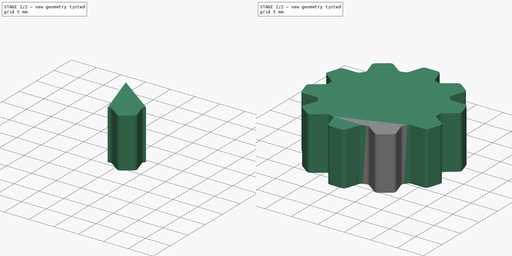
[diagram: build sequence overview — one tinted view per stage of 2, left to right]
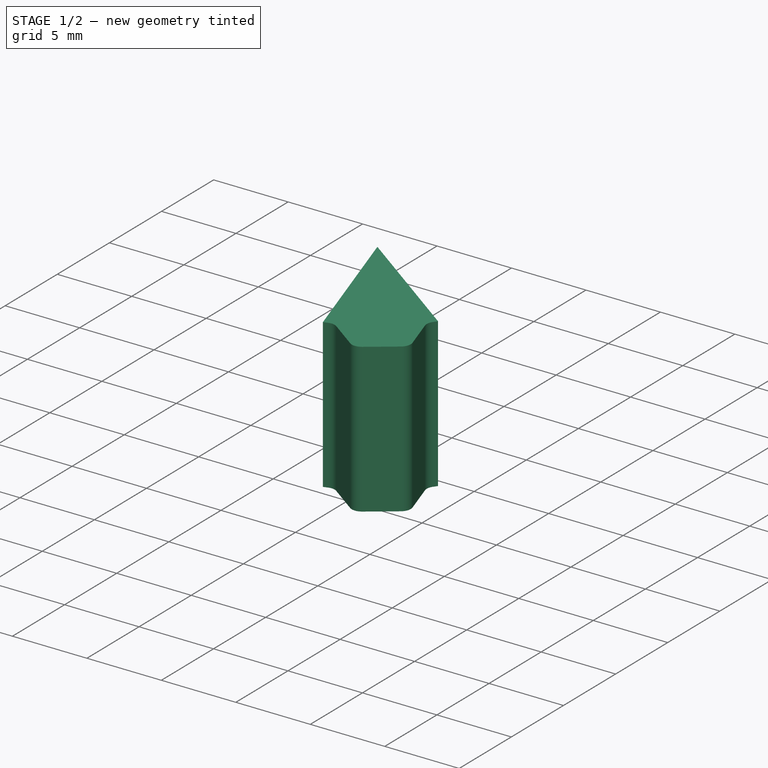
[diagram: stage 1 of 2 — iso view after this stage's code; geometry added in this stage tinted green]
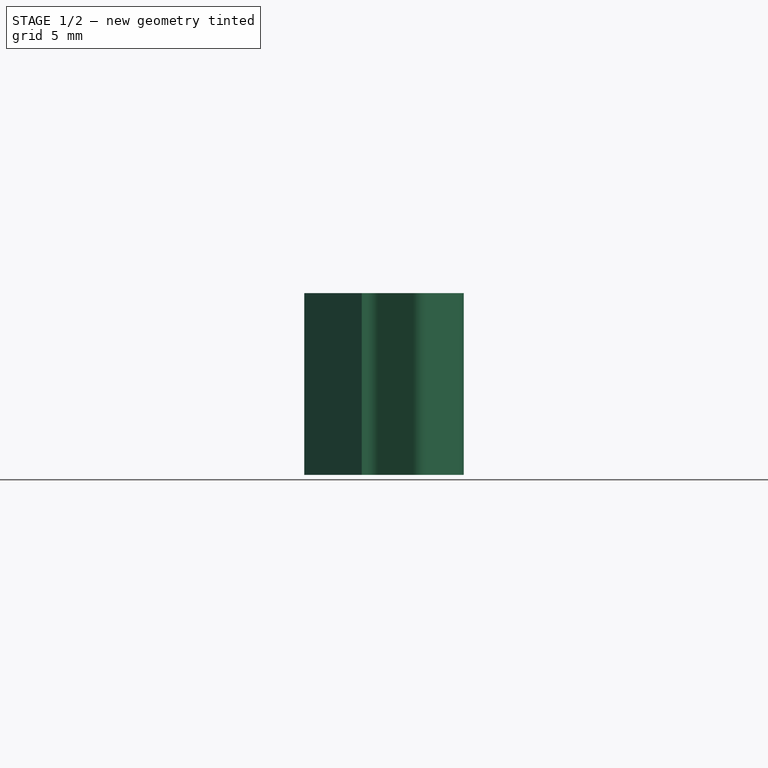
[diagram: stage 1 of 2 — front view after this stage's code; geometry added in this stage tinted green]
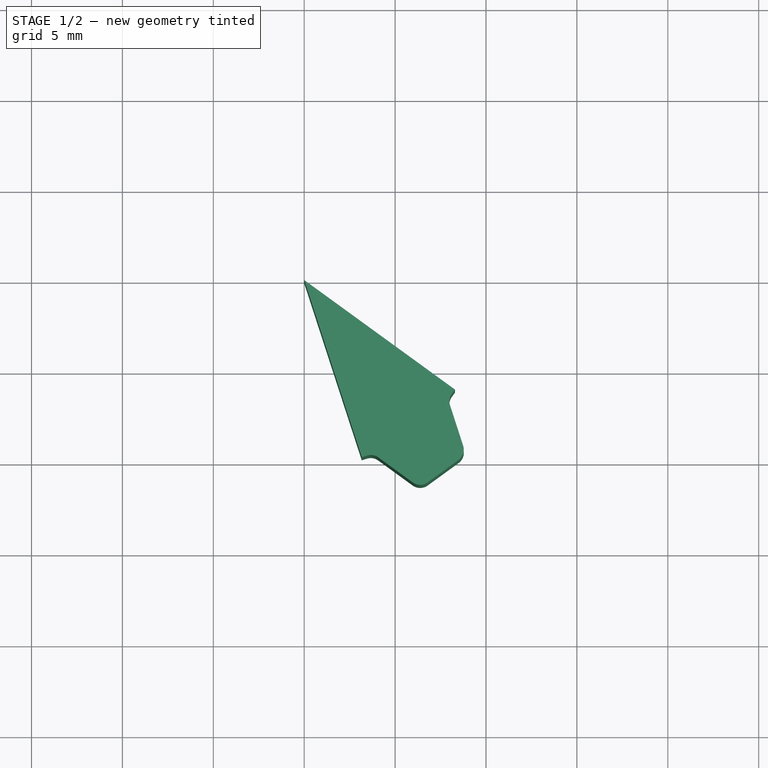
[diagram: stage 1 of 2 — top view after this stage's code; geometry added in this stage tinted green]
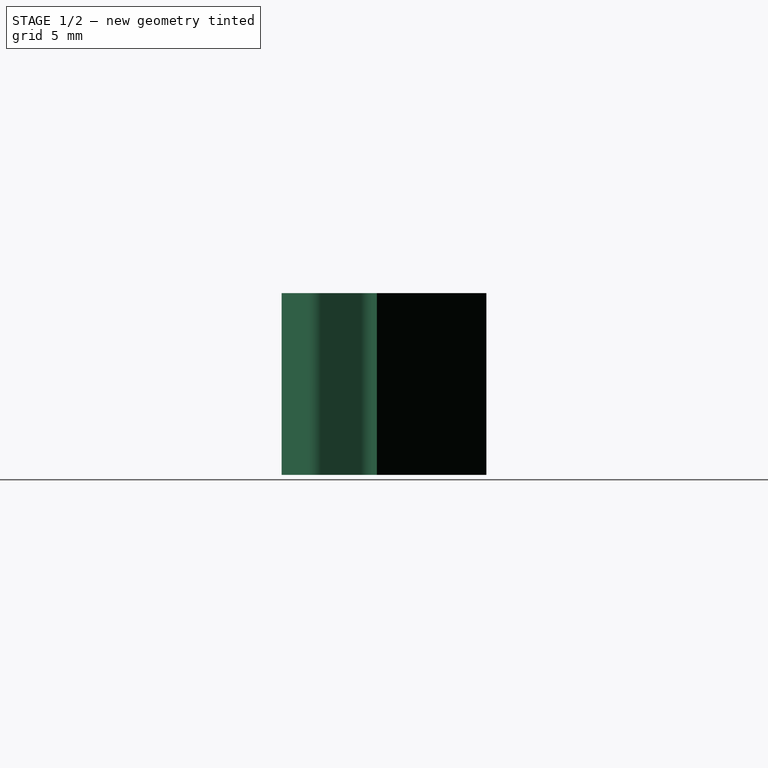
[diagram: stage 1 of 2 — right view after this stage's code; geometry added in this stage tinted green]
FCSTD DOCUMENT  (FreeCAD 0.22R37543 (Git))
Label: FreeCAD_Gear
License: All rights reserved
LicenseURL: https://en.wikipedia.org/wiki/All_rights_reserved
objects: Sketcher::SketchObject×1, PartDesign::Pad×1, PartDesign::PolarPattern×1, PartDesign::Body×1, Part::Feature×1
note: 6 computed .brp shape members not serialized (recipe doc carries the construction recipe); baked Part::Feature solids carry a one-line shape summary decoded from their .brp

FEATURE [Sketcher::SketchObject] Sketch002  label="Logo_Sketch001"
  FullyConstrained = false
  sketch-geometry (25):
    g0: GeomPoint X=0 Y=0 Z=0
    g1: LineSegment StartX=8.29242 StartY=-6.0248 StartZ=0 EndX=8.12043 EndY=-6.26153 EndZ=0
    g2: LineSegment StartX=8.021 StartY=-6.88929 StartZ=0 EndX=8.74497 EndY=-9.11742 EndZ=0
    g3: LineSegment StartX=8.49068 StartY=-9.90005 StartZ=0 EndX=6.79174 EndY=-11.1344 EndZ=0
    g4: LineSegment StartX=5.96884 StartY=-11.1344 StartZ=0 EndX=4.07348 EndY=-9.75733 EndZ=0
    g5: LineSegment StartX=3.44572 StartY=-9.65791 StartZ=0 EndX=3.16742 EndY=-9.74833 EndZ=0
    g6: LineSegment StartX=0 StartY=0 StartZ=0 EndX=7.64121 EndY=-10.5172 EndZ=0
    g7: LineSegment StartX=0 StartY=0 StartZ=0 EndX=0 EndY=-13 EndZ=0
    g8: Circle CenterX=0 CenterY=0 CenterZ=0 NormalX=0 NormalY=0 NormalZ=1 AngleXU=0 Radius=13
    g9: LineSegment StartX=0 StartY=0 StartZ=0 EndX=10.5172 EndY=-7.64121 EndZ=0
    g10: LineSegment StartX=0 StartY=0 StartZ=0 EndX=4.01722 EndY=-12.3637 EndZ=0
    g11: GeomPoint X=3.16742 Y=-9.74833 Z=0
    g12: Circle CenterX=0 CenterY=0 CenterZ=0 NormalX=0 NormalY=0 NormalZ=1 AngleXU=0 Radius=10.25
    g13: ArcOfCircle CenterX=8.68674 CenterY=-6.67298 CenterZ=0 NormalX=0 NormalY=0 NormalZ=1 AngleXU=0 Radius=0.7 StartAngle=2.51327 EndAngle=3.45575
    g14: GeomPoint X=7.91079 Y=-6.55008 Z=0
    g15: ArcOfCircle CenterX=8.07923 CenterY=-9.33373 CenterZ=0 NormalX=0 NormalY=0 NormalZ=1 AngleXU=0 Radius=0.7 StartAngle=5.34071 EndAngle=6.59734
    g16: GeomPoint X=8.90213 Y=-9.60111 Z=0
    g17: ArcOfCircle CenterX=6.38029 CenterY=-10.5681 CenterZ=0 NormalX=0 NormalY=0 NormalZ=1 AngleXU=0 Radius=0.7 StartAngle=4.08407 EndAngle=5.34071
    g18: GeomPoint X=6.38029 Y=-11.4333 Z=0
    g19: ArcOfCircle CenterX=3.66203 CenterY=-10.3236 CenterZ=0 NormalX=0 NormalY=0 NormalZ=1 AngleXU=0 Radius=0.7 StartAngle=0.942478 EndAngle=1.88496
    g20: GeomPoint X=3.78493 Y=-9.54769 Z=0
    g21: GeomPoint X=8.55858 Y=-24 Z=0
    g22: GeomPoint X=8.29242 Y=-6.0248 Z=0
    g23: LineSegment StartX=0 StartY=0 StartZ=0 EndX=8.29242 EndY=-6.0248 EndZ=0
    g24: LineSegment StartX=0 StartY=0 StartZ=0 EndX=3.16742 EndY=-9.74833 EndZ=0
  constraints (56):
    c: Coincident(g0,g-1)
    c: Vertical(g7)
    c: Angle(g7,g6) = 0.628319
    c: PointOnObject(g7,g8)
    c: PointOnObject(g6,g8)
    c: PointOnObject(g9,g8)
    c: Angle(g6,g9) = 0.314159
    c: PointOnObject(g10,g8)
    c: Angle(g7,g10) = 0.314159
    c: PointOnObject(g11,g10)
    c: PointOnObject(g11,g12)
    c: PointOnObject(g11,g5)
    c: Diameter(g12) = 20.5
    c: PointOnObject(g14,g1)
    c: PointOnObject(g14,g2)
    c: Tangent(g1,g13) = -1.5708
    c: Tangent(g2,g13) = -1.5708
    c: PointOnObject(g16,g2)
    c: PointOnObject(g16,g3)
    c: Tangent(g2,g15) = 1.5708
    c: Tangent(g3,g15) = 1.5708
    c: PointOnObject(g18,g3)
    c: PointOnObject(g18,g4)
    c: Tangent(g3,g17) = 1.5708
    c: Tangent(g4,g17) = 1.5708
    c: PointOnObject(g20,g4)
    c: PointOnObject(g20,g5)
    c: Tangent(g4,g19) = -1.5708
    c: Tangent(g5,g19) = -1.5708
    c: Symmetric(g16,g18,g6)
    c: PointOnObject(g22,g9)
    c: PointOnObject(g22,g12)
    c: PointOnObject(g22,g1)
    c: Angle(g6,g4) = 0.314159
    c: PointOnObject(g5,g10)
    c: PointOnObject(g1,g9)
    c: Diameter(g8) = 26
    c: Radius(g19) = 0.7
    c: Equal(g17,g19)
    c: Equal(g15,g19)
    c: Equal(g13,g19)
    c: Angle(g2,g6) = 0.314159
    c: Distance(g3,g3) = 2.1
    c: Coincident(g6,g7)
    c: Coincident(g6,g8)
    c: Coincident(g6,g9)
    c: Coincident(g6,g10)
    c: Coincident(g6,g12)
    c: Equal(g1,g5)
    c: PointOnObject(g6,g3)
    c: Perpendicular(g10,g5)
    c: Coincident(g6,g0)
    c: Coincident(g23,g0)
    c: Coincident(g23,g1)
    c: Coincident(g24,g0)
    c: Coincident(g24,g5)
FEATURE [PartDesign::Pad] Pad
  Direction = (0,0,1)
  Length = 10
  Length2 = 10
  Profile = -> Sketch002
  ReferenceAxis = -> Sketch002 [N_Axis]
  Refine = true
  Suppressed = false
  Type = 0
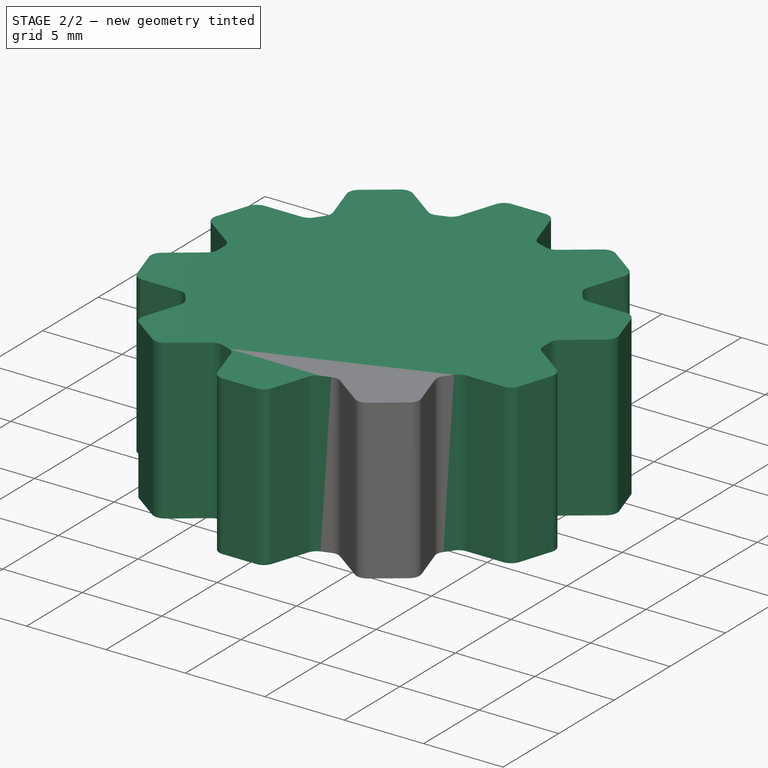
[diagram: stage 2 of 2 — iso view after this stage's code; geometry added in this stage tinted green]
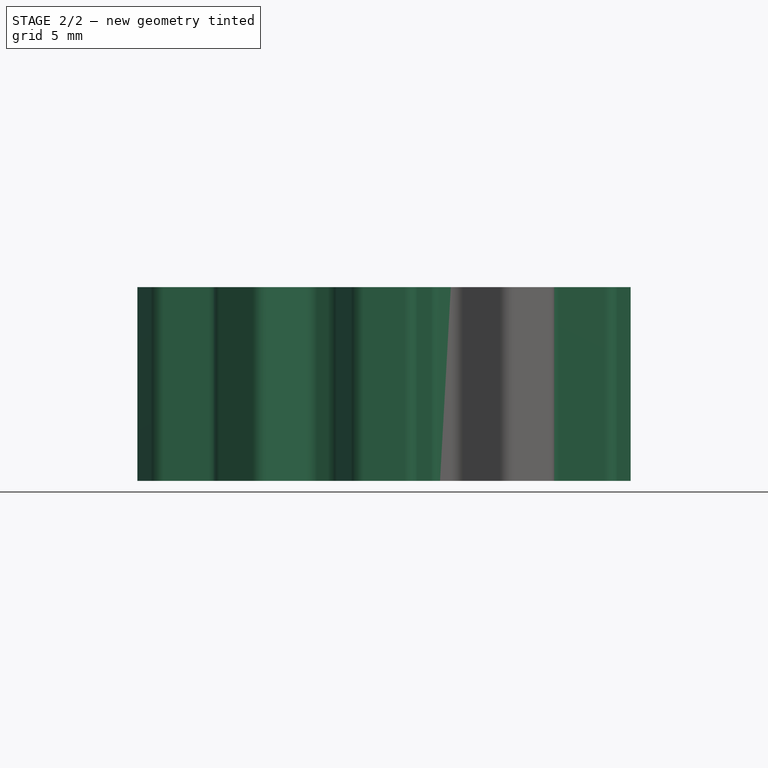
[diagram: stage 2 of 2 — front view after this stage's code; geometry added in this stage tinted green]
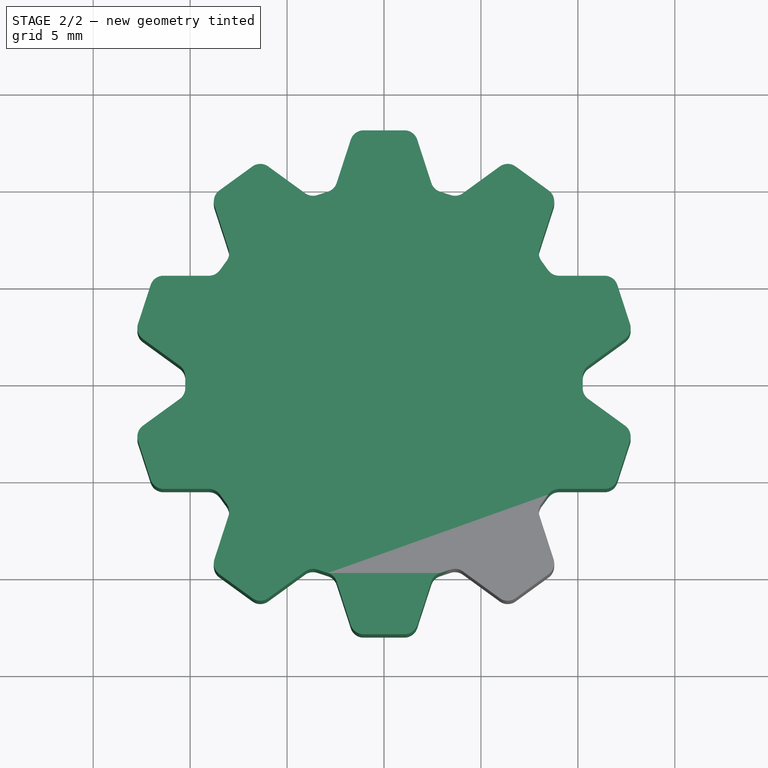
[diagram: stage 2 of 2 — top view after this stage's code; geometry added in this stage tinted green]
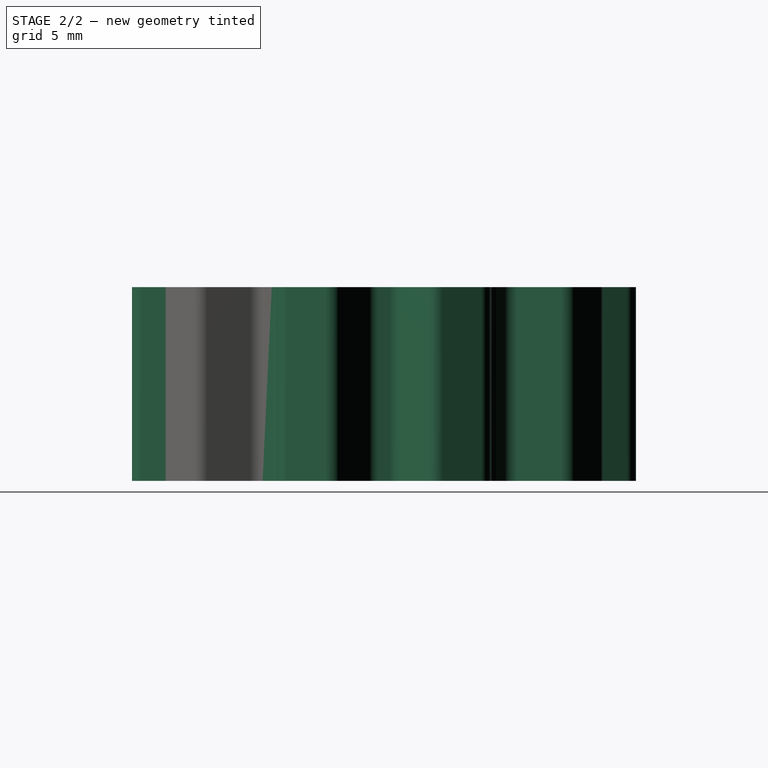
[diagram: stage 2 of 2 — right view after this stage's code; geometry added in this stage tinted green]
FEATURE [PartDesign::PolarPattern] PolarPattern
  Angle = 360
  Axis = -> Sketch002 [N_Axis]
  BaseFeature = -> Pad
  Mode = 0
  Occurrences = 10
  Offset = 120
  Originals = -> [Pad]
  Refine = true
  Suppressed = false
FEATURE [PartDesign::Body] Body  label="Gear"
  AllowCompound = false
  Group = -> [Sketch002,Pad,PolarPattern]
  Origin = -> Origin
  Tip = -> PolarPattern
FEATURE [Part::Feature] Wire  label="Outline"
  shape: bbox 25.44 x 26 x 2e-07 mm, 0 faces, 0 solids (baked)
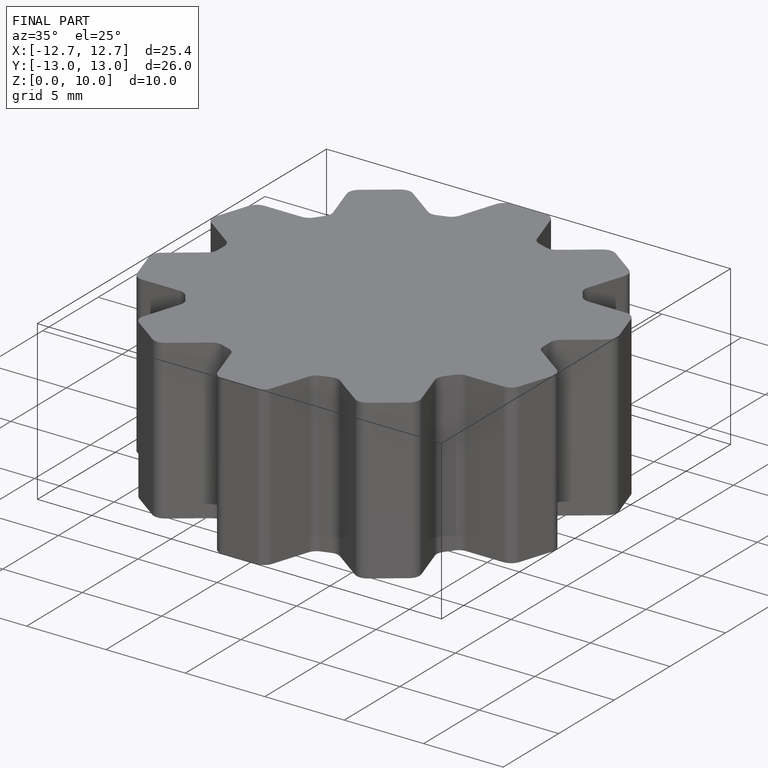
[diagram: finished part — iso view with bounding-box wireframe]
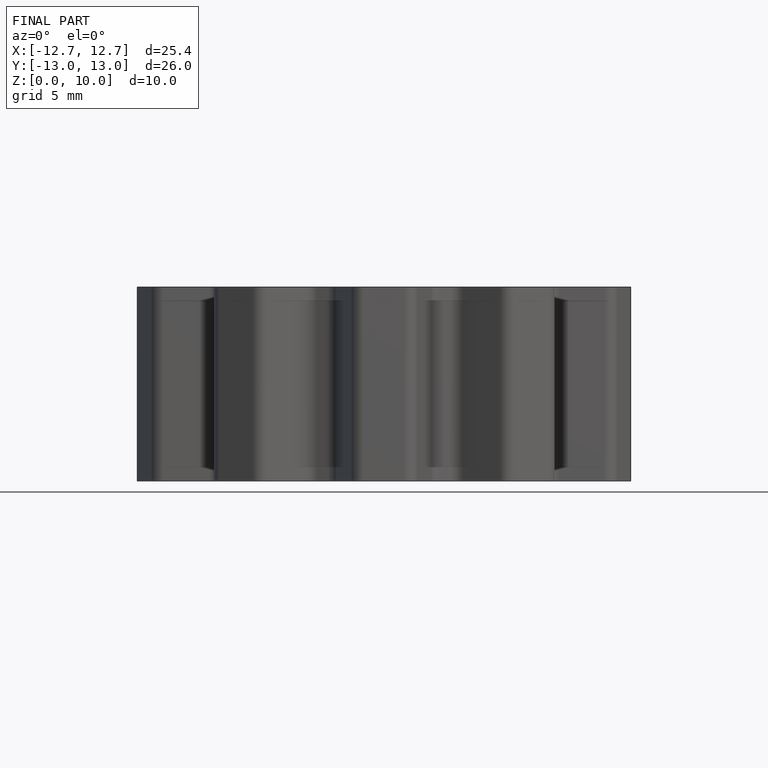
[diagram: finished part — front view with bounding-box wireframe]
